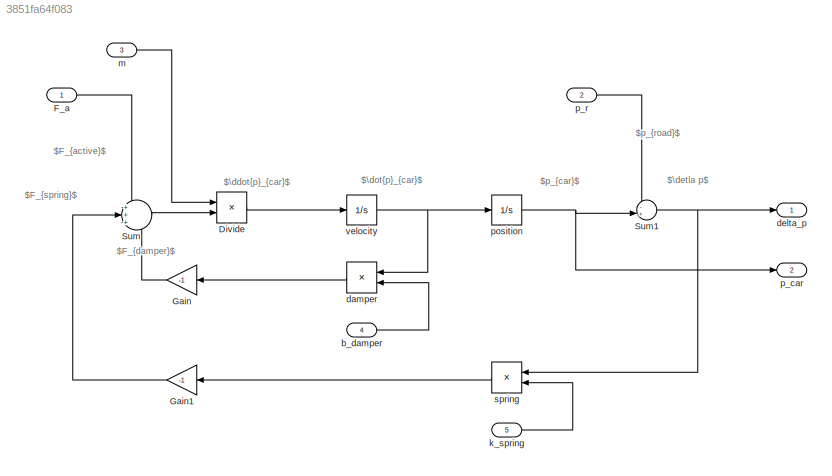
MODEL slx_3851fa64f083
KIND model
CONFIG AbsTol = auto
CONFIG EnableMultiTasking = off
CONFIG FixedStep = auto
CONFIG MaxStep = auto
CONFIG MinStep = auto
CONFIG RelTol = 1e-3
CONFIG SampleTimeConstraint = Unconstrained
CONFIG SolverName = VariableStepAuto
CONFIG StartTime = 0.0
CONFIG StopTime = 10.0
BLOCK [Product] Divide
  Inputs = /*
  Ports = [2, 1]
BLOCK [Inport] F_a
BLOCK [Gain] Gain
  Gain = -1
BLOCK [Gain] Gain1
  Gain = -1
BLOCK [Sum] Sum
  Inputs = +++
  Ports = [3, 1]
BLOCK [Sum] Sum1
  Inputs = -+|
  Ports = [2, 1]
BLOCK [Inport] b_damper
  Port = 4
BLOCK [Product] damper
  Ports = [2, 1]
BLOCK [Outport] delta_p
  VectorParamsAs1DForOutWhenUnconnected = off
BLOCK [Inport] k_spring
  Port = 5
BLOCK [Inport] m
  Port = 3
BLOCK [Outport] p_car
  Port = 2
  VectorParamsAs1DForOutWhenUnconnected = off
BLOCK [Inport] p_r
  Port = 2
BLOCK [Integrator] position
  Ports = [1, 1]
BLOCK [Product] spring
  Ports = [2, 1]
BLOCK [Integrator] velocity
  Ports = [1, 1]
ANNOTATION (root): $F_{active}$
ANNOTATION (root): $F_{damper}$
ANNOTATION (root): $F_{spring}$
ANNOTATION (root): $\ddot{p}_{car}$
ANNOTATION (root): $\detla p$
ANNOTATION (root): $\dot{p}_{car}$
ANNOTATION (root): $p_{car}$
ANNOTATION (root): $p_{road}$
LINE Divide:1 -> velocity:1
LINE F_a:1 -> Sum:1
LINE Gain1:1 -> Sum:2
LINE Gain:1 -> Sum:3
NET Sum1:1 -> delta_p:1, spring:1
LINE Sum:1 -> Divide:2
LINE b_damper:1 -> damper:2
LINE damper:1 -> Gain:1
LINE k_spring:1 -> spring:2
LINE m:1 -> Divide:1
LINE p_r:1 -> Sum1:1
NET position:1 -> Sum1:2, p_car:1
LINE spring:1 -> Gain1:1
NET velocity:1 -> damper:1, position:1
note: NET lines group one-source signal fan-out (src -> all destinations, sorted); 1:1 wires keep LINE
